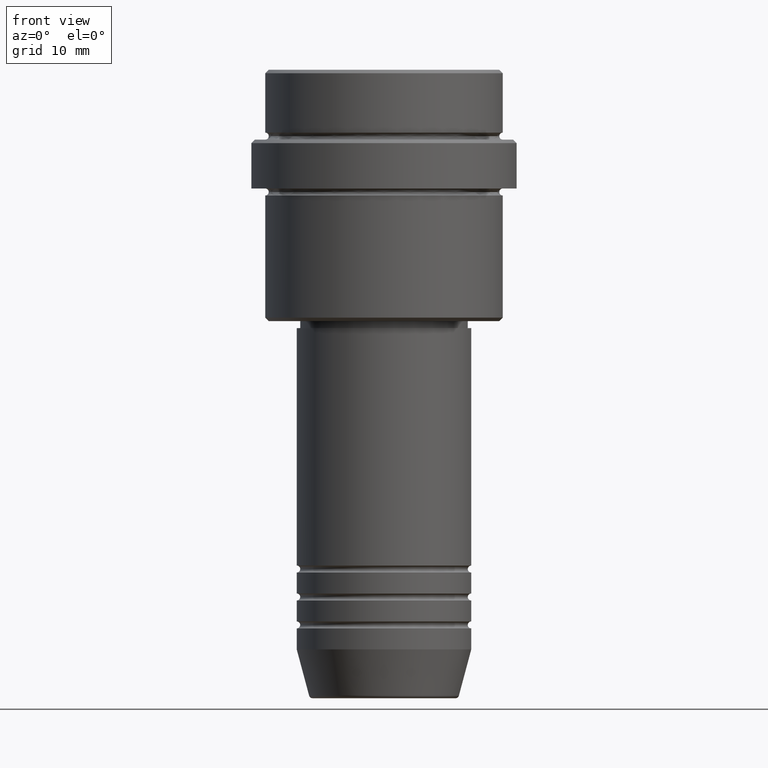
[diagram: clean part render]
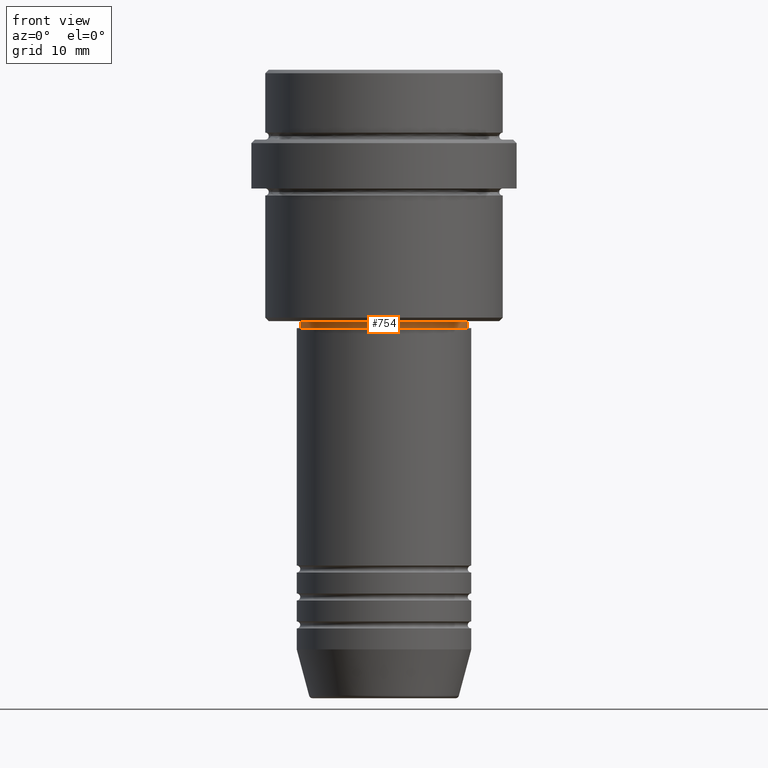
[diagram: same view with one face highlighted and labeled with its STEP entity id]
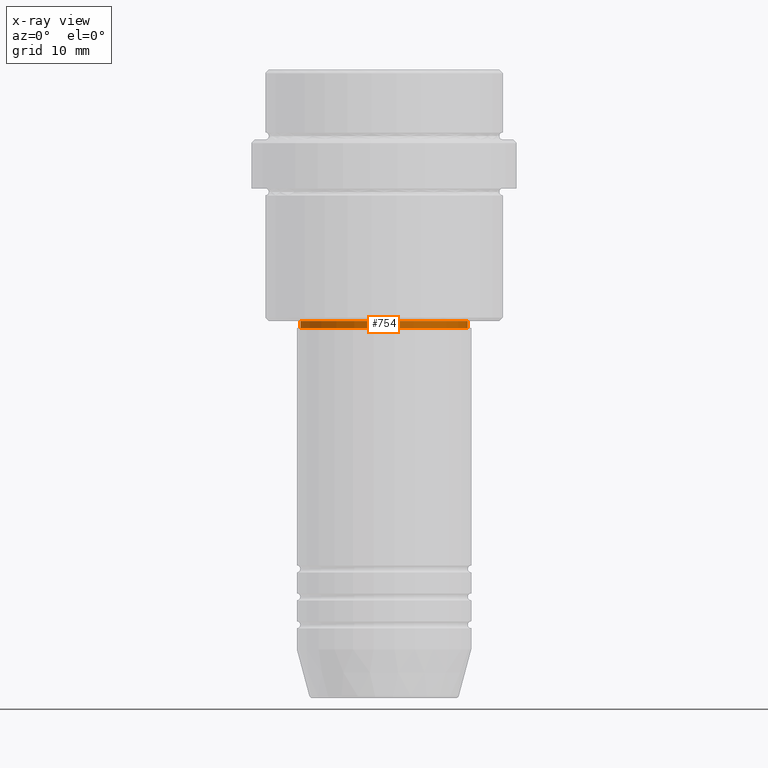
[diagram: x-ray of the same camera — body ghosted, the highlighted face saturated]
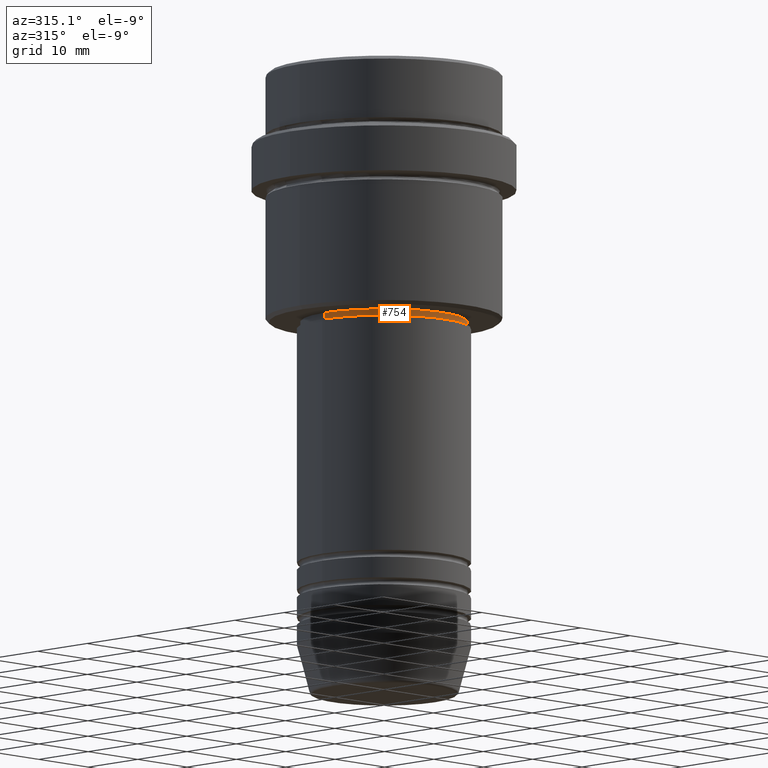
[diagram: same view with one face highlighted and labeled with its STEP entity id]
A machine part, front view. The second image highlights one B-rep face of the part: STEP entity #754.
The next image is the same camera in x-ray: the body ghosted, the highlighted face saturated — about 0% of this face is hidden behind the body in this view.
A second angle (auxiliary view) of the same face is appended — the face is thin or edge-on in the first view.
In plain terms, the highlighted cylindrical surface (partial cylindrical patch) has radius 12 mm, axis along (-0, -0, 1).
Its self-contained STEP definition (entity closure, byte-faithful):
#23 = CARTESIAN_POINT ( 'NONE',  ( -11.99999999999999289, 1.469576158976823158E-15, -36.00000000000000000 ) ) ;
#85 = ORIENTED_EDGE ( 'NONE', *, *, #1089, .F. ) ;
#91 = FACE_OUTER_BOUND ( 'NONE', #890, .T. ) ;
#188 = AXIS2_PLACEMENT_3D ( 'NONE', #756, #1200, #606 ) ;
#245 = CARTESIAN_POINT ( 'NONE',  ( 11.99999999999999289, 0.000000000000000000, -36.00000000000000000 ) ) ;
#313 = EDGE_CURVE ( 'NONE', #1218, #787, #1142, .T. ) ;
#366 = ORIENTED_EDGE ( 'NONE', *, *, #715, .T. ) ;
#407 = DIRECTION ( 'NONE',  ( 1.000000000000000000, 0.000000000000000000, 0.000000000000000000 ) ) ;
#446 = EDGE_CURVE ( 'NONE', #1112, #787, #1280, .T. ) ;
#468 = ORIENTED_EDGE ( 'NONE', *, *, #446, .F. ) ;
#504 = DIRECTION ( 'NONE',  ( -0.000000000000000000, -0.000000000000000000, 1.000000000000000000 ) ) ;
#519 = CYLINDRICAL_SURFACE ( 'NONE', #969, 11.99999999999999289 ) ;
#566 = CARTESIAN_POINT ( 'NONE',  ( -11.99999999999999289, 1.469576158976823158E-15, 0.000000000000000000 ) ) ;
#606 = DIRECTION ( 'NONE',  ( 1.000000000000000000, 0.000000000000000000, 0.000000000000000000 ) ) ;
#650 = LINE ( 'NONE', #566, #1021 ) ;
#690 = CARTESIAN_POINT ( 'NONE',  ( 11.99999999999999289, 0.000000000000000000, 0.000000000000000000 ) ) ;
#715 = EDGE_CURVE ( 'NONE', #1024, #1218, #929, .T. ) ;
#727 = DIRECTION ( 'NONE',  ( 1.000000000000000000, 0.000000000000000000, 0.000000000000000000 ) ) ;
#754 = ADVANCED_FACE ( 'NONE', ( #91 ), #519, .T. ) ;
#756 = CARTESIAN_POINT ( 'NONE',  ( 0.000000000000000000, 0.000000000000000000, -37.00000000000000000 ) ) ;
#787 = VERTEX_POINT ( 'NONE', #245 ) ;
#838 = VECTOR ( 'NONE', #1252, 1000.000000000000000 ) ;
#890 = EDGE_LOOP ( 'NONE', ( #85, #366, #1196, #468 ) ) ;
#929 = CIRCLE ( 'NONE', #188, 11.99999999999999289 ) ;
#969 = AXIS2_PLACEMENT_3D ( 'NONE', #972, #1404, #407 ) ;
#972 = CARTESIAN_POINT ( 'NONE',  ( 0.000000000000000000, 0.000000000000000000, 0.000000000000000000 ) ) ;
#1021 = VECTOR ( 'NONE', #1417, 1000.000000000000000 ) ;
#1024 = VERTEX_POINT ( 'NONE', #1250 ) ;
#1089 = EDGE_CURVE ( 'NONE', #1024, #1112, #650, .T. ) ;
#1112 = VERTEX_POINT ( 'NONE', #23 ) ;
#1142 = LINE ( 'NONE', #690, #838 ) ;
#1196 = ORIENTED_EDGE ( 'NONE', *, *, #313, .T. ) ;
#1200 = DIRECTION ( 'NONE',  ( -0.000000000000000000, -0.000000000000000000, 1.000000000000000000 ) ) ;
#1218 = VERTEX_POINT ( 'NONE', #1378 ) ;
#1250 = CARTESIAN_POINT ( 'NONE',  ( -11.99999999999999289, 1.469576158976823158E-15, -37.00000000000000000 ) ) ;
#1252 = DIRECTION ( 'NONE',  ( -0.000000000000000000, -0.000000000000000000, 1.000000000000000000 ) ) ;
#1280 = CIRCLE ( 'NONE', #1355, 11.99999999999999289 ) ;
#1355 = AXIS2_PLACEMENT_3D ( 'NONE', #1381, #504, #727 ) ;
#1378 = CARTESIAN_POINT ( 'NONE',  ( 11.99999999999999289, 0.000000000000000000, -37.00000000000000000 ) ) ;
#1381 = CARTESIAN_POINT ( 'NONE',  ( 0.000000000000000000, 0.000000000000000000, -36.00000000000000000 ) ) ;
#1404 = DIRECTION ( 'NONE',  ( -0.000000000000000000, -0.000000000000000000, 1.000000000000000000 ) ) ;
#1417 = DIRECTION ( 'NONE',  ( -0.000000000000000000, -0.000000000000000000, 1.000000000000000000 ) ) ;